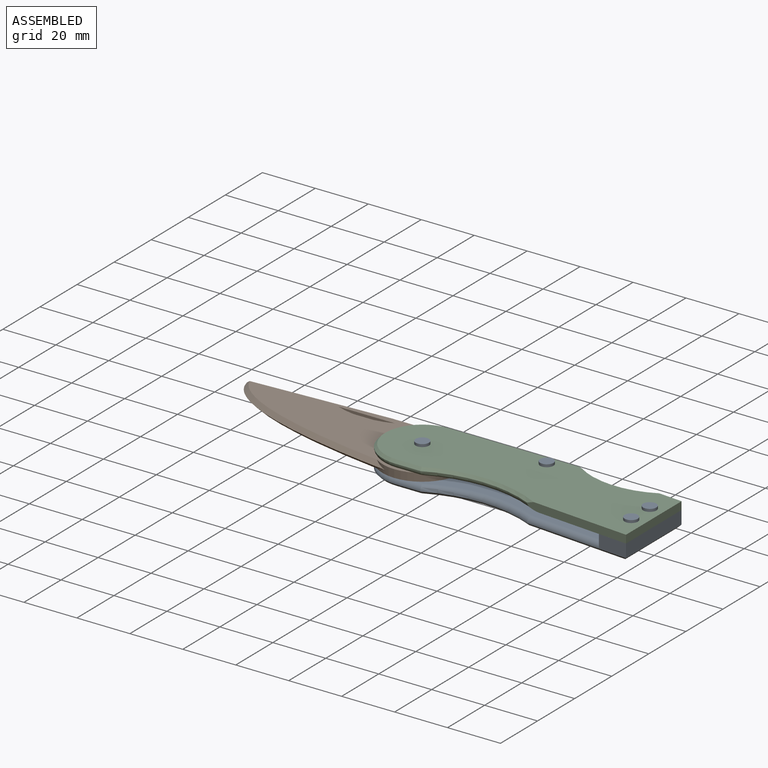
[diagram: assembled view]
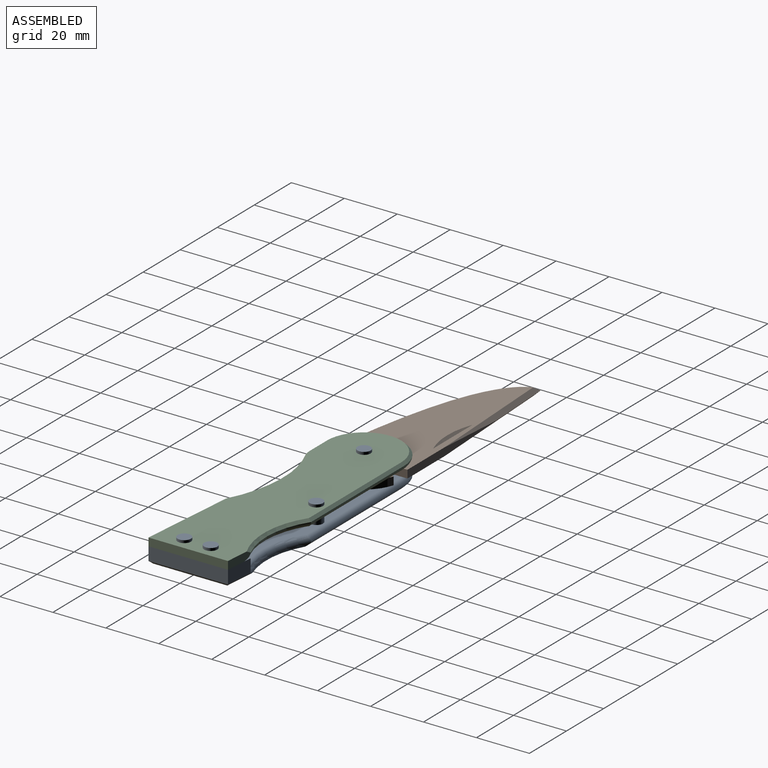
[diagram: assembled view, second angle]
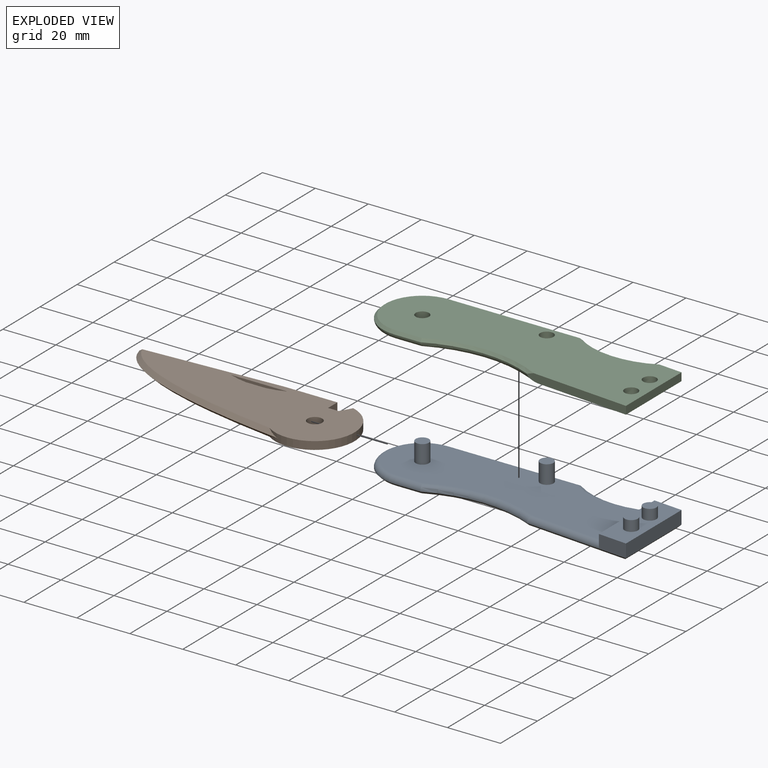
[diagram: exploded view]
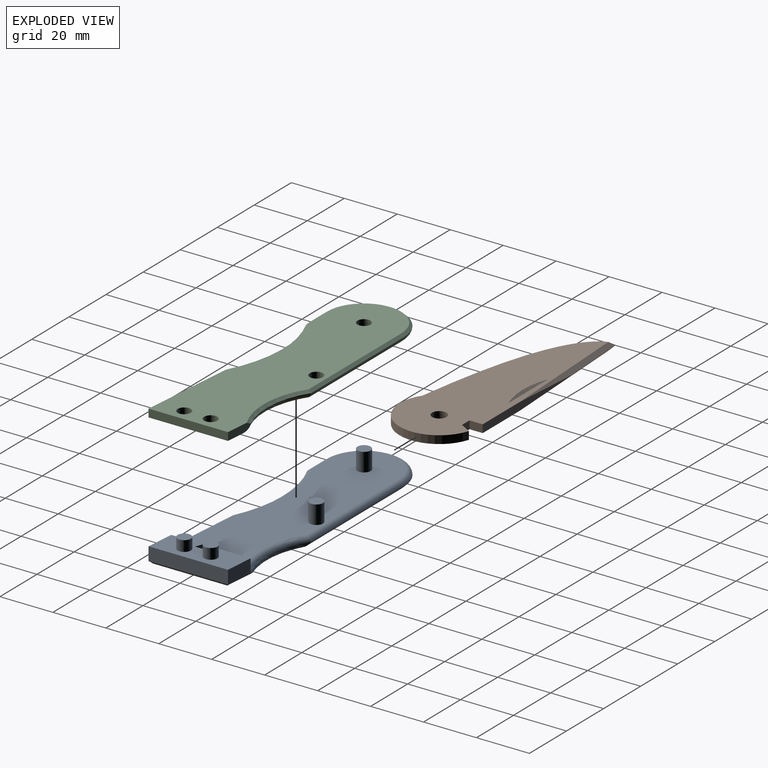
[diagram: exploded view, second angle]
ASSEMBLY  parts=3 mates=2
PART A: 33 faces, bbox 106.1x34.8x10.5 mm
  f0: plane 94.78x28.52mm, normal (0,0,1), area 2093mm2, adj f6,f7,f8,f9,f10,f16,f18,f20
  f1: plane 10.89x5mm, normal (-0.09,-1,0), area 54.7mm2, adj f2,f10,f11,f28
  f2: plane 29.99x5mm, normal (1,0,0), area 150mm2, adj f1,f3,f11,f27
  f3: plane 10.89x5mm, normal (0.09,1,0), area 54.7mm2, adj f2,f6,f11,f26
  f4: cylinder r=30mm len=28.96mm, axis (0,0,-1), area 28.3mm2, adj f5,f20,f26,f32
  f5: plane 102.85x31.39mm, normal (0,0,-1), area 2626.6mm2, adj f4,f26,f27,f28,f29,f30,f31,f32
  f6: plane 13x5mm, normal (-1,0,0), area 39.9mm2, adj f0,f3,f7,f11,f20
  f7: plane 3x2.82mm, normal (-0.34,-0.94,0), area 9mm2, adj f0,f6,f8,f11
  f8: plane 5x3mm, normal (-1,0,0), area 15mm2, adj f0,f7,f9,f11
  f9: plane 3x2.82mm, normal (0.34,0.94,0), area 9mm2, adj f0,f8,f10,f11
  f10: plane 12x5mm, normal (-1,0,0), area 36.9mm2, adj f0,f1,f9,f11,f22
  f11: plane 30.95x10.89mm, normal (0,0,1), area 273.3mm2, adj f1,f2,f3,f6,f7,f8,f9,f10
  f12: plane 5x5mm, normal (0,0,1), area 19.6mm2, adj f13
  f13: cylinder r=2.5mm len=5mm, axis (0,0,-1), area 62.8mm2, adj f11,f12
  f14: plane 5x5mm, normal (0,0,1), area 19.6mm2, adj f15
  f15: cylinder r=2.5mm len=5mm, axis (0,0,-1), area 62.8mm2, adj f11,f14
  f16: cylinder r=2.5mm len=7mm, axis (0,0,-1), area 110mm2, adj f0,f17
  f17: plane 5x5mm, normal (0,0,1), area 19.6mm2, adj f16
  f18: cylinder r=2.5mm len=7mm, axis (0,0,-1), area 110mm2, adj f0,f19
  f19: plane 5x5mm, normal (0,0,1), area 19.6mm2, adj f18
  f20: torus R=32mm, axis (0,0,1), area 95.9mm2, adj f0,f4,f6,f21
  f21: cylinder r=2mm len=50mm, axis (1,0,0), area 156.4mm2, adj f0,f20,f23,f32
  f22: cylinder r=2mm len=29.13mm, axis (-1,0.09,0), area 90.7mm2, adj f0,f10,f24,f28
  f23: torus R=13mm, axis (0,0,1), area 140.9mm2, adj f0,f21,f25,f31
  f24: torus R=49.51mm, axis (0,0,1), area 131.5mm2, adj f0,f22,f25,f29
  f25: cylinder r=2mm len=9.78mm, axis (-1,0,0), area 30.2mm2, adj f0,f23,f24,f30
  f26: plane 12.98x1.91mm, normal (0.06,0.7,-0.71), area 16.2mm2, adj f3,f4,f5,f27
  f27: plane 29.99x1mm, normal (0.71,0,-0.71), area 41mm2, adj f2,f5,f26,f28
  f28: plane 39.85x4.46mm, normal (-0.06,-0.7,-0.71), area 55.7mm2, adj f1,f5,f22,f27,f29
  f29: cone r=48.51mm half-angle=45deg, axis (0,0,-1), area 59.1mm2, adj f5,f24,f28,f30
  f30: plane 9.78x1mm, normal (0,-0.71,-0.71), area 13.7mm2, adj f5,f25,f29,f31
  f31: cone r=15mm half-angle=45deg, axis (0,0,1), area 64.4mm2, adj f5,f23,f30,f32
  f32: plane 51.61x1.02mm, normal (0,0.71,-0.71), area 71.8mm2, adj f4,f5,f21,f31
PART B: 20 faces, bbox 90.9x30.1x3.1 mm
  f0: plane 21.41x1.12mm, normal (0,-1,0), area 18.3mm2, adj f9,f11,f13
  f1: plane 48x3mm, normal (0,1,0), area 102mm2, adj f7,f8,f9,f17,f19
  f2: cylinder r=15mm len=29.31mm, axis (0,0,-1), area 146.8mm2, adj f3,f8,f9,f14,f15
  f3: plane 4.31x3mm, normal (-0.87,0.5,0), area 14.9mm2, adj f2,f4,f8,f9
  f4: plane 4x3mm, normal (0,1,0), area 12mm2, adj f3,f7,f8,f9
  f5: plane 21.41x1.12mm, normal (0,-1,0), area 18.3mm2, adj f8,f10,f12
  f6: cylinder r=2.75mm len=5.5mm, axis (0,0,-1), area 51.8mm2, adj f8,f9
  f7: plane 5x3mm, normal (1,0,0), area 15mm2, adj f1,f4,f8,f9
  f8: plane 88.71x30mm, normal (0,0,1), area 1728.4mm2, adj f1,f2,f3,f4,f5,f6,f7,f10
  f9: plane 88.71x30mm, normal (0,0,-1), area 1728.4mm2, adj f0,f1,f2,f3,f4,f6,f7,f11
  f10: cone r=29mm half-angle=45deg, axis (0,0,1), area 26.1mm2, adj f5,f8,f12
  f11: cone r=28mm half-angle=45deg, axis (0,0,-1), area 26.1mm2, adj f0,f9,f13
  f12: plane 15x1.02mm, normal (0,0,1), area 10.3mm2, adj f5,f10
  f13: plane 15x1.02mm, normal (0,0,-1), area 10.3mm2, adj f0,f11
  f14: bspline ~75.26x27.18mm, area 157.2mm2, adj f2,f9,f15,f16
  f15: bspline ~75.26x27.18mm, area 157.2mm2, adj f2,f8,f14,f18
  f16: plane 2.77x2.34mm, normal (-0.67,-0.23,-0.71), area 4mm2, adj f9,f14,f17,f18
  f17: plane 53.8x2.77mm, normal (-0.04,0.71,-0.71), area 82.3mm2, adj f1,f9,f16,f19
  f18: plane 2.77x2.34mm, normal (-0.67,-0.23,0.71), area 4mm2, adj f8,f15,f16,f19
  f19: plane 53.8x2.77mm, normal (-0.04,0.71,0.71), area 82.3mm2, adj f1,f8,f17,f18
PART C: 19 faces, bbox 106.1x34.8x3.5 mm
  f0: plane 39.9x3.53mm, normal (-0.09,-1,0), area 116.3mm2, adj f3,f4,f7,f9,f17
  f1: cylinder r=2.5mm len=5mm, axis (0,0,-1), area 47.1mm2, adj f3,f4
  f2: cylinder r=2.5mm len=5mm, axis (0,0,-1), area 47.1mm2, adj f3,f4
  f3: plane 103.85x32.48mm, normal (0,0,1), area 2595.8mm2, adj f0,f1,f2,f5,f6,f7,f8,f14
  f4: plane 102.85x31.48mm, normal (0,0,-1), area 2414.2mm2, adj f0,f1,f2,f5,f6,f7,f8,f9
  f5: plane 10.94x3.04mm, normal (0.09,1,0), area 30.1mm2, adj f3,f4,f7,f11,f14
  f6: cylinder r=2.5mm len=5mm, axis (0,0,-1), area 47.1mm2, adj f3,f4
  f7: plane 29.99x3mm, normal (1,0,0), area 90mm2, adj f0,f3,f4,f5
  f8: cylinder r=2.5mm len=5mm, axis (0,0,-1), area 47.1mm2, adj f3,f4
  f9: torus R=49.51mm, axis (0,0,1), area 137.7mm2, adj f0,f4,f10,f17
  f10: cylinder r=2mm len=9.78mm, axis (1,0,0), area 30.2mm2, adj f4,f9,f12,f18
  f11: torus R=32mm, axis (0,0,1), area 100.8mm2, adj f4,f5,f13,f14
  f12: torus R=13mm, axis (0,0,1), area 140.9mm2, adj f4,f10,f13,f16
  f13: cylinder r=2mm len=50mm, axis (-1,0,0), area 156.4mm2, adj f4,f11,f12,f15
  f14: cone r=30mm half-angle=45deg, axis (0,0,1), area 44.6mm2, adj f3,f5,f11,f15
  f15: plane 50x1mm, normal (0,0.71,0.71), area 70.5mm2, adj f3,f13,f14,f16
  f16: cone r=14mm half-angle=45deg, axis (0,0,-1), area 64.4mm2, adj f3,f12,f15,f18
  f17: cone r=47.51mm half-angle=45deg, axis (0,0,1), area 61mm2, adj f0,f3,f9,f18
  f18: plane 9.78x1mm, normal (0,-0.71,0.71), area 13.7mm2, adj f3,f10,f16,f17
PLACE A t=(-41.41,-29.47,27.49)mm
PLACE B t=(-113.76,-14.47,30.49)mm
PLACE C t=(-51.48,-15.04,33.49)mm
MATE revolute B.f2 <-> A.f18  axis (0,0,-1) through (-91.41,-14.47,30.49)mm
MATE revolute A.f15 <-> C.f8  axis (0,0,-1) through (-6.56,-22.96,33.49)mm
